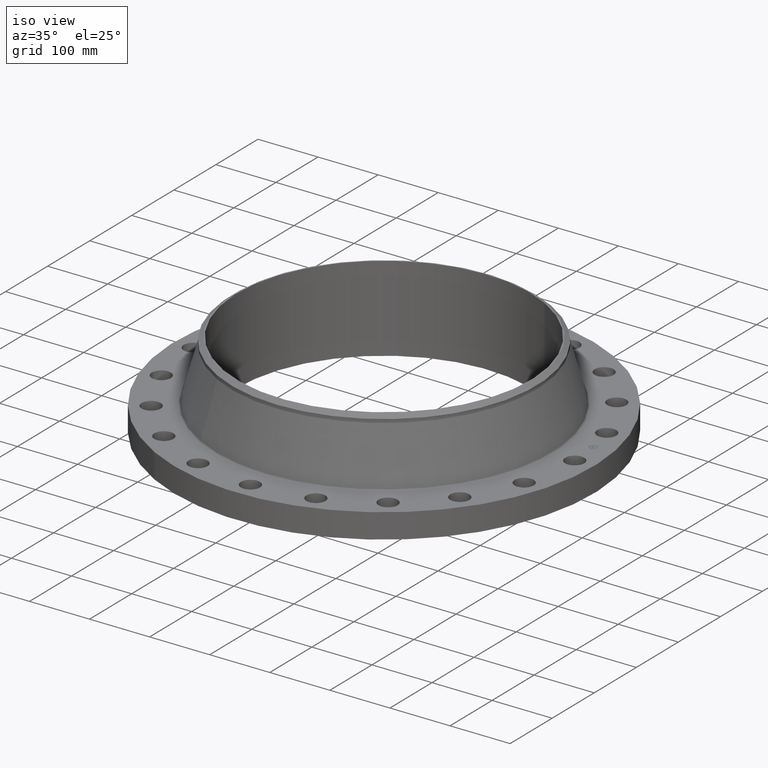
[diagram: clean part render]
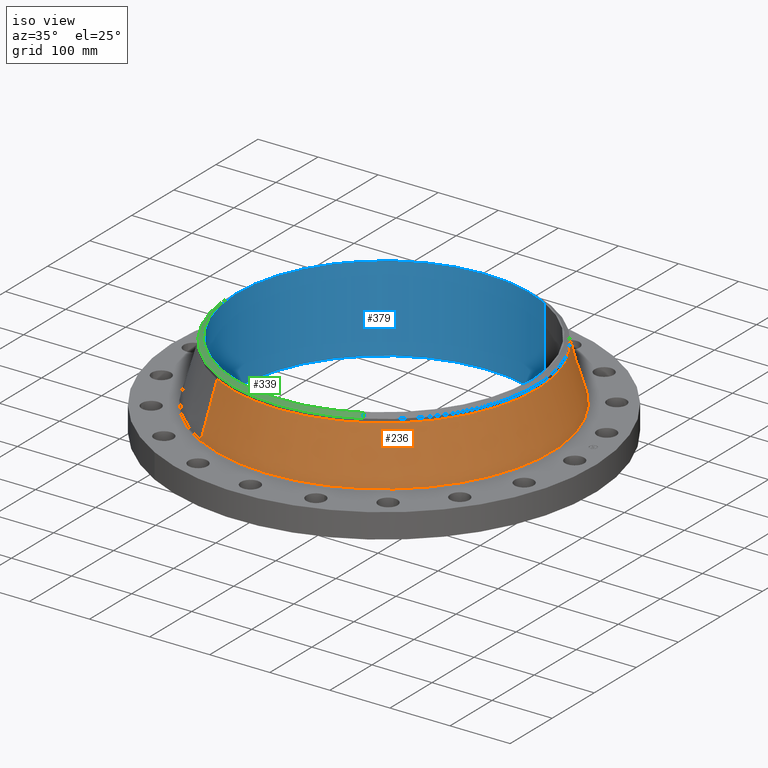
[diagram: same view with three faces highlighted in distinct colors, each labeled with its STEP entity id]
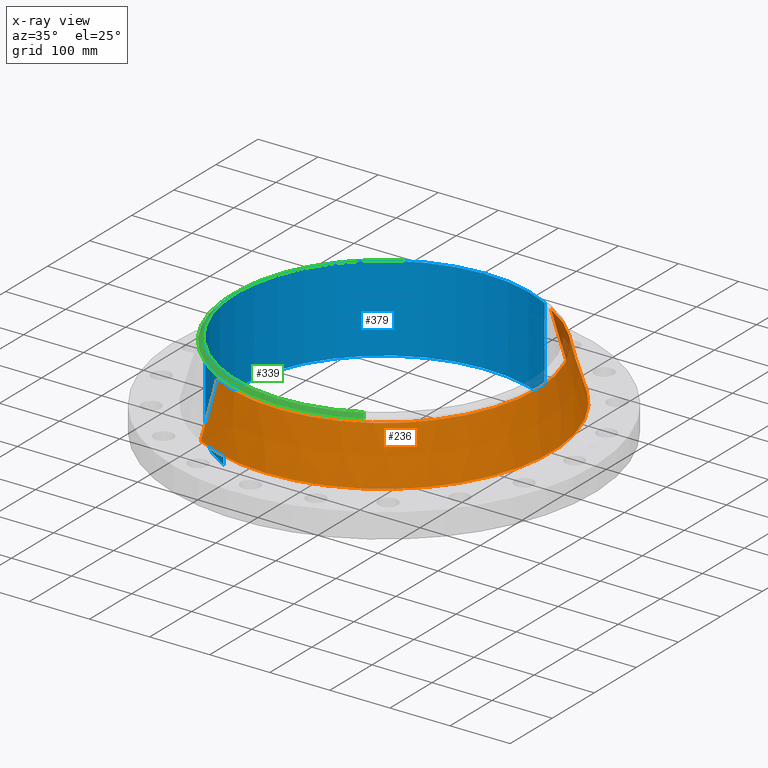
[diagram: x-ray of the same camera — body ghosted, the three highlighted faces saturated]
A machine part, iso view with three faces highlighted in distinct colors.
The next image is the same camera in x-ray (body ghosted, the three faces saturated) — at least one of them is partly hidden behind the body in this view.
Their STEP definitions:

[orange] entity #236 — the highlighted conical surface has half-angle 15.789 deg.
#172=AXIS2_PLACEMENT_3D('Circle Axis2P3D',#170,#171,$) ;
#209=AXIS2_PLACEMENT_3D('Cone Axis2P3D',#206,#207,#208) ;
#220=AXIS2_PLACEMENT_3D('Circle Axis2P3D',#218,#219,$) ;
#167=CARTESIAN_POINT('Vertex',(5.26183943465,9.63173247875,1.70734798221)) ;
#170=CARTESIAN_POINT('Axis2P3D Location',(0.,0.,1.70734798221)) ;
#174=CARTESIAN_POINT('Vertex',(-5.26183943465,-9.63173247875,1.70734798221)) ;
#206=CARTESIAN_POINT('Axis2P3D Location',(0.,0.,5.15645135496)) ;
#211=CARTESIAN_POINT('Line Origine',(5.02804741036,9.20377904884,3.43189966859)) ;
#215=CARTESIAN_POINT('Vertex',(4.79425538606,8.77582561894,5.15645135496)) ;
#218=CARTESIAN_POINT('Axis2P3D Location',(0.,0.,5.15645135496)) ;
#222=CARTESIAN_POINT('Vertex',(-4.79425538606,-8.77582561894,5.15645135496)) ;
#225=CARTESIAN_POINT('Line Origine',(-5.02804741036,-9.20377904884,3.43189966859)) ;
#171=DIRECTION('Axis2P3D Direction',(0.,0.,-0.0393700787402)) ;
#207=DIRECTION('Axis2P3D Direction',(0.,0.,-0.0393700787402)) ;
#208=DIRECTION('Axis2P3D XDirection',(-0.0188750212049,-0.0345504945626,0.)) ;
#212=DIRECTION('Vector Direction',(0.00513589606901,0.00940119469431,-0.0378846038635)) ;
#219=DIRECTION('Axis2P3D Direction',(0.,0.,-0.0393700787402)) ;
#226=DIRECTION('Vector Direction',(-0.00513589606901,-0.00940119469431,-0.0378846038635)) ;
#213=VECTOR('Line Direction',#212,0.0393700787402) ;
#227=VECTOR('Line Direction',#226,0.0393700787402) ;
#231=ORIENTED_EDGE('',*,*,#176,.F.) ;
#232=ORIENTED_EDGE('',*,*,#217,.T.) ;
#233=ORIENTED_EDGE('',*,*,#224,.T.) ;
#234=ORIENTED_EDGE('',*,*,#229,.F.) ;
#236=ADVANCED_FACE('PartBody',(#235),#210,.T.) ;
#173=CIRCLE('generated circle',#172,10.9753006692) ;
#221=CIRCLE('generated circle',#220,10.) ;
#210=CONICAL_SURFACE('Cone',#209,10.,0.275574856355) ;
#176=EDGE_CURVE('',#168,#175,#173,.T.) ;
#217=EDGE_CURVE('',#168,#216,#214,.F.) ;
#224=EDGE_CURVE('',#216,#223,#221,.T.) ;
#229=EDGE_CURVE('',#175,#223,#228,.F.) ;
#230=EDGE_LOOP('',(#231,#232,#233,#234)) ;
#235=FACE_OUTER_BOUND('',#230,.T.) ;
#214=LINE('Line',#211,#213) ;
#228=LINE('Line',#225,#227) ;
#168=VERTEX_POINT('',#167) ;
#175=VERTEX_POINT('',#174) ;
#216=VERTEX_POINT('',#215) ;
#223=VERTEX_POINT('',#222) ;

[blue] entity #379 — the highlighted cylindrical surface (partial cylindrical patch) has radius 244.475 mm, axis along (0, 0, -1).
#343=AXIS2_PLACEMENT_3D('Cylinder Axis2P3D',#340,#341,#342) ;
#347=AXIS2_PLACEMENT_3D('Circle Axis2P3D',#345,#346,$) ;
#363=AXIS2_PLACEMENT_3D('Circle Axis2P3D',#361,#362,$) ;
#340=CARTESIAN_POINT('Axis2P3D Location',(0.,0.,2.81000000001)) ;
#345=CARTESIAN_POINT('Axis2P3D Location',(0.,0.,5.62000000002)) ;
#349=CARTESIAN_POINT('Vertex',(-4.61447080908,-8.44673215823,5.62000000002)) ;
#351=CARTESIAN_POINT('Vertex',(4.61447080908,8.44673215823,5.62000000002)) ;
#354=CARTESIAN_POINT('Line Origine',(-4.61447080908,-8.44673215823,2.81000000001)) ;
#358=CARTESIAN_POINT('Vertex',(-4.61447080908,-8.44673215823,-6.04241066631E-014)) ;
#361=CARTESIAN_POINT('Axis2P3D Location',(0.,0.,-6.15430716013E-014)) ;
#365=CARTESIAN_POINT('Vertex',(4.61447080908,8.44673215823,-6.04241066631E-014)) ;
#368=CARTESIAN_POINT('Line Origine',(4.61447080908,8.44673215823,2.81000000001)) ;
#341=DIRECTION('Axis2P3D Direction',(0.,0.,-0.0393700787402)) ;
#342=DIRECTION('Axis2P3D XDirection',(0.0188750212049,0.0345504945626,0.)) ;
#346=DIRECTION('Axis2P3D Direction',(0.,0.,-0.0393700787402)) ;
#355=DIRECTION('Vector Direction',(0.,0.,-0.0393700787402)) ;
#362=DIRECTION('Axis2P3D Direction',(0.,0.,-0.0393700787402)) ;
#369=DIRECTION('Vector Direction',(0.,0.,-0.0393700787402)) ;
#356=VECTOR('Line Direction',#355,0.0393700787402) ;
#370=VECTOR('Line Direction',#369,0.0393700787402) ;
#374=ORIENTED_EDGE('',*,*,#353,.F.) ;
#375=ORIENTED_EDGE('',*,*,#360,.T.) ;
#376=ORIENTED_EDGE('',*,*,#367,.T.) ;
#377=ORIENTED_EDGE('',*,*,#372,.F.) ;
#379=ADVANCED_FACE('PartBody',(#378),#344,.F.) ;
#348=CIRCLE('generated circle',#347,9.62500000004) ;
#364=CIRCLE('generated circle',#363,9.62500000004) ;
#344=CYLINDRICAL_SURFACE('generated cylinder',#343,9.62500000004) ;
#353=EDGE_CURVE('',#350,#352,#348,.T.) ;
#360=EDGE_CURVE('',#350,#359,#357,.T.) ;
#367=EDGE_CURVE('',#359,#366,#364,.T.) ;
#372=EDGE_CURVE('',#352,#366,#371,.T.) ;
#373=EDGE_LOOP('',(#374,#375,#376,#377)) ;
#378=FACE_OUTER_BOUND('',#373,.T.) ;
#357=LINE('Line',#354,#356) ;
#371=LINE('Line',#368,#370) ;
#350=VERTEX_POINT('',#349) ;
#352=VERTEX_POINT('',#351) ;
#359=VERTEX_POINT('',#358) ;
#366=VERTEX_POINT('',#365) ;

[green] entity #339 — the highlighted conical surface has half-angle 52.5 deg.
#277=AXIS2_PLACEMENT_3D('Circle Axis2P3D',#275,#276,$) ;
#290=AXIS2_PLACEMENT_3D('Circle Axis2P3D',#288,#289,$) ;
#311=AXIS2_PLACEMENT_3D('Cone Axis2P3D',#308,#309,#310) ;
#322=AXIS2_PLACEMENT_3D('Circle Axis2P3D',#320,#321,$) ;
#258=CARTESIAN_POINT('Vertex',(-4.79425538606,-8.77582561894,5.3926718274)) ;
#272=CARTESIAN_POINT('Vertex',(4.79425538606,-8.77582561894,5.3926718274)) ;
#275=CARTESIAN_POINT('Axis2P3D Location',(0.,0.,5.3926718274)) ;
#288=CARTESIAN_POINT('Axis2P3D Location',(0.,0.,5.3926718274)) ;
#292=CARTESIAN_POINT('Vertex',(-4.79425538606,8.77582561894,5.3926718274)) ;
#308=CARTESIAN_POINT('Axis2P3D Location',(0.,0.,5.62000000002)) ;
#313=CARTESIAN_POINT('Line Origine',(4.72323811878,-8.64582938315,5.50633591371)) ;
#317=CARTESIAN_POINT('Vertex',(4.65222085149,-8.51583314735,5.62000000002)) ;
#320=CARTESIAN_POINT('Axis2P3D Location',(0.,0.,5.62000000002)) ;
#324=CARTESIAN_POINT('Vertex',(-4.65222085149,8.51583314735,5.62000000002)) ;
#327=CARTESIAN_POINT('Line Origine',(-4.72323811878,8.64582938315,5.50633591371)) ;
#276=DIRECTION('Axis2P3D Direction',(0.,0.,-0.0393700787402)) ;
#289=DIRECTION('Axis2P3D Direction',(0.,0.,-0.0393700787402)) ;
#309=DIRECTION('Axis2P3D Direction',(-0.,-0.,-0.0393700787402)) ;
#310=DIRECTION('Axis2P3D XDirection',(-0.0188750212049,0.0345504945626,0.)) ;
#314=DIRECTION('Vector Direction',(0.014974561121,-0.02741075027,-0.023966985394)) ;
#321=DIRECTION('Axis2P3D Direction',(0.,0.,-0.0393700787402)) ;
#328=DIRECTION('Vector Direction',(-0.014974561121,0.02741075027,-0.023966985394)) ;
#315=VECTOR('Line Direction',#314,0.0393700787402) ;
#329=VECTOR('Line Direction',#328,0.0393700787402) ;
#333=ORIENTED_EDGE('',*,*,#319,.F.) ;
#334=ORIENTED_EDGE('',*,*,#326,.F.) ;
#335=ORIENTED_EDGE('',*,*,#331,.T.) ;
#336=ORIENTED_EDGE('',*,*,#294,.T.) ;
#337=ORIENTED_EDGE('',*,*,#279,.F.) ;
#339=ADVANCED_FACE('PartBody',(#338),#312,.T.) ;
#278=CIRCLE('generated circle',#277,10.) ;
#291=CIRCLE('generated circle',#290,10.) ;
#323=CIRCLE('generated circle',#322,9.70374015752) ;
#312=CONICAL_SURFACE('Cone',#311,9.70374015752,0.916297857297) ;
#279=EDGE_CURVE('',#273,#259,#278,.T.) ;
#294=EDGE_CURVE('',#293,#259,#291,.F.) ;
#319=EDGE_CURVE('',#318,#273,#316,.T.) ;
#326=EDGE_CURVE('',#325,#318,#323,.F.) ;
#331=EDGE_CURVE('',#325,#293,#330,.T.) ;
#332=EDGE_LOOP('',(#333,#334,#335,#336,#337)) ;
#338=FACE_OUTER_BOUND('',#332,.T.) ;
#316=LINE('Line',#313,#315) ;
#330=LINE('Line',#327,#329) ;
#259=VERTEX_POINT('',#258) ;
#273=VERTEX_POINT('',#272) ;
#293=VERTEX_POINT('',#292) ;
#318=VERTEX_POINT('',#317) ;
#325=VERTEX_POINT('',#324) ;